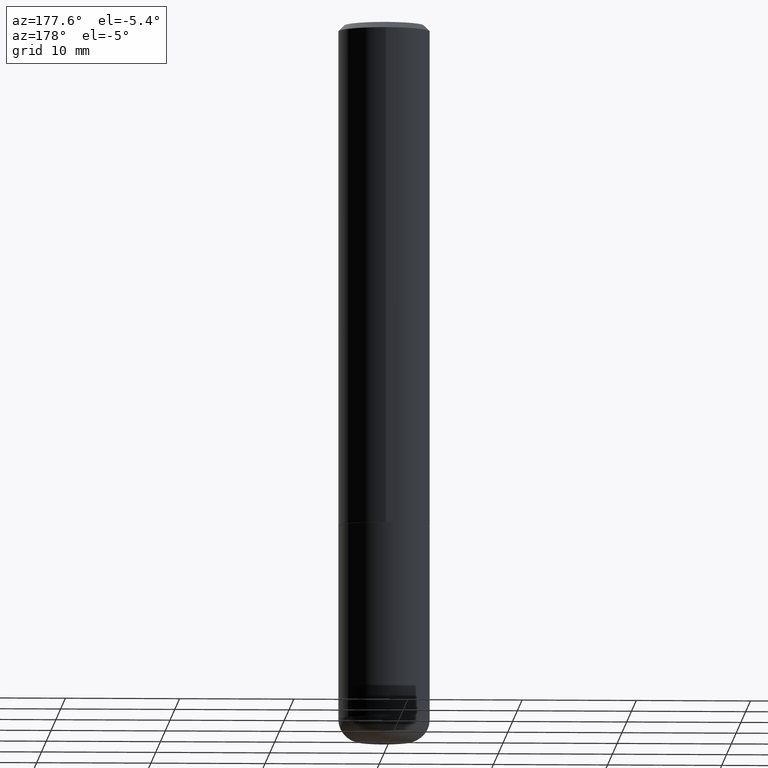
[diagram: clean part render]
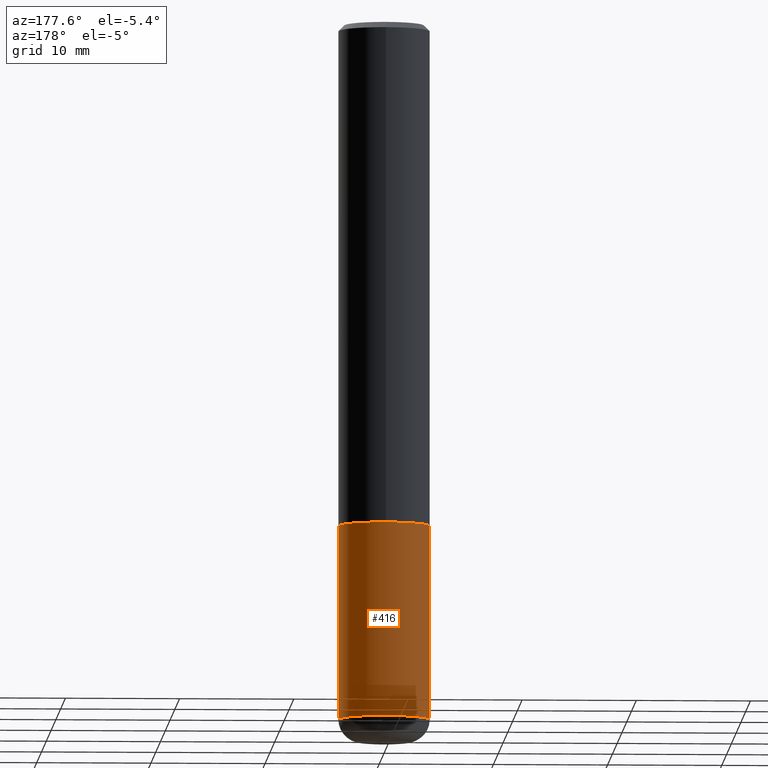
[diagram: same view with one face highlighted and labeled with its STEP entity id]
A machine part, auxiliary view. The second image highlights one B-rep face of the part: STEP entity #416.
In plain terms, the highlighted cylindrical surface (partial cylindrical patch) has radius 4.0005 mm, axis along (-0, 0, 1).
Its self-contained STEP definition (entity closure, byte-faithful):
#4 = DIRECTION ( 'NONE',  ( 1.000000000000000000, -6.982962677686261977E-15, 0.000000000000000000 ) ) ;
#8 = ORIENTED_EDGE ( 'NONE', *, *, #78, .F. ) ;
#10 = LINE ( 'NONE', #398, #116 ) ;
#12 = VERTEX_POINT ( 'NONE', #367 ) ;
#18 = DIRECTION ( 'NONE',  ( 1.000000000000000000, -6.982962677686265922E-15, 4.876176775795935232E-29 ) ) ;
#29 = CIRCLE ( 'NONE', #339, 0.1575000000000000011 ) ;
#43 = DIRECTION ( 'NONE',  ( -2.445468806185136877E-29, 3.491481338843145188E-15, 1.000000000000000000 ) ) ;
#70 = VECTOR ( 'NONE', #364, 39.37007874015748143 ) ;
#76 = DIRECTION ( 'NONE',  ( -2.445468806185136597E-29, 3.491481338843145583E-15, 1.000000000000000000 ) ) ;
#78 = EDGE_CURVE ( 'NONE', #12, #257, #29, .T. ) ;
#102 = CARTESIAN_POINT ( 'NONE',  ( 0.1574999999999999456, -9.484958205101285532E-15, -2.401600000000000623 ) ) ;
#106 = CYLINDRICAL_SURFACE ( 'NONE', #299, 0.1575000000000000011 ) ;
#114 = CARTESIAN_POINT ( 'NONE',  ( -0.1575000000000000011, -6.097612544499682750E-15, -1.732300000000000173 ) ) ;
#116 = VECTOR ( 'NONE', #43, 39.37007874015748143 ) ;
#123 = DIRECTION ( 'NONE',  ( -2.445468806185136597E-29, 3.491481338843145583E-15, 1.000000000000000000 ) ) ;
#132 = AXIS2_PLACEMENT_3D ( 'NONE', #167, #384, #4 ) ;
#158 = ORIENTED_EDGE ( 'NONE', *, *, #268, .F. ) ;
#167 = CARTESIAN_POINT ( 'NONE',  ( 5.873037884934225470E-29, -8.385141583365698841E-15, -2.401600000000000623 ) ) ;
#189 = ORIENTED_EDGE ( 'NONE', *, *, #346, .T. ) ;
#208 = CIRCLE ( 'NONE', #132, 0.1575000000000000011 ) ;
#230 = EDGE_CURVE ( 'NONE', #379, #257, #295, .T. ) ;
#236 = CARTESIAN_POINT ( 'NONE',  ( -0.1575000000000000011, 1.119104808822157801E-15, -7.747322767151475583E-30 ) ) ;
#247 = DIRECTION ( 'NONE',  ( 1.000000000000000000, -6.982962677686268288E-15, 0.000000000000000000 ) ) ;
#257 = VERTEX_POINT ( 'NONE', #114 ) ;
#262 = EDGE_LOOP ( 'NONE', ( #189, #349, #8, #158 ) ) ;
#268 = EDGE_CURVE ( 'NONE', #355, #12, #10, .T. ) ;
#295 = LINE ( 'NONE', #236, #70 ) ;
#299 = AXIS2_PLACEMENT_3D ( 'NONE', #357, #76, #18 ) ;
#307 = CARTESIAN_POINT ( 'NONE',  ( 4.236285612954512953E-29, -6.048293123277982656E-15, -1.732300000000000173 ) ) ;
#315 = CARTESIAN_POINT ( 'NONE',  ( -0.1574999999999999456, -7.266036774543542815E-15, -2.401600000000000623 ) ) ;
#339 = AXIS2_PLACEMENT_3D ( 'NONE', #307, #123, #247 ) ;
#346 = EDGE_CURVE ( 'NONE', #355, #379, #208, .T. ) ;
#349 = ORIENTED_EDGE ( 'NONE', *, *, #230, .T. ) ;
#355 = VERTEX_POINT ( 'NONE', #102 ) ;
#357 = CARTESIAN_POINT ( 'NONE',  ( 0.000000000000000000, 0.000000000000000000, 0.000000000000000000 ) ) ;
#364 = DIRECTION ( 'NONE',  ( -2.445468806185136877E-29, 3.491481338843145188E-15, 1.000000000000000000 ) ) ;
#367 = CARTESIAN_POINT ( 'NONE',  ( 0.1575000000000000011, -7.148109745013570136E-15, -1.732300000000000173 ) ) ;
#379 = VERTEX_POINT ( 'NONE', #315 ) ;
#384 = DIRECTION ( 'NONE',  ( -2.445468806185136597E-29, 3.491481338843145583E-15, 1.000000000000000000 ) ) ;
#389 = FACE_OUTER_BOUND ( 'NONE', #262, .T. ) ;
#398 = CARTESIAN_POINT ( 'NONE',  ( 0.1575000000000000011, -1.099816621735586889E-15, 7.679978421878598033E-30 ) ) ;
#416 = ADVANCED_FACE ( 'NONE', ( #389 ), #106, .T. ) ;